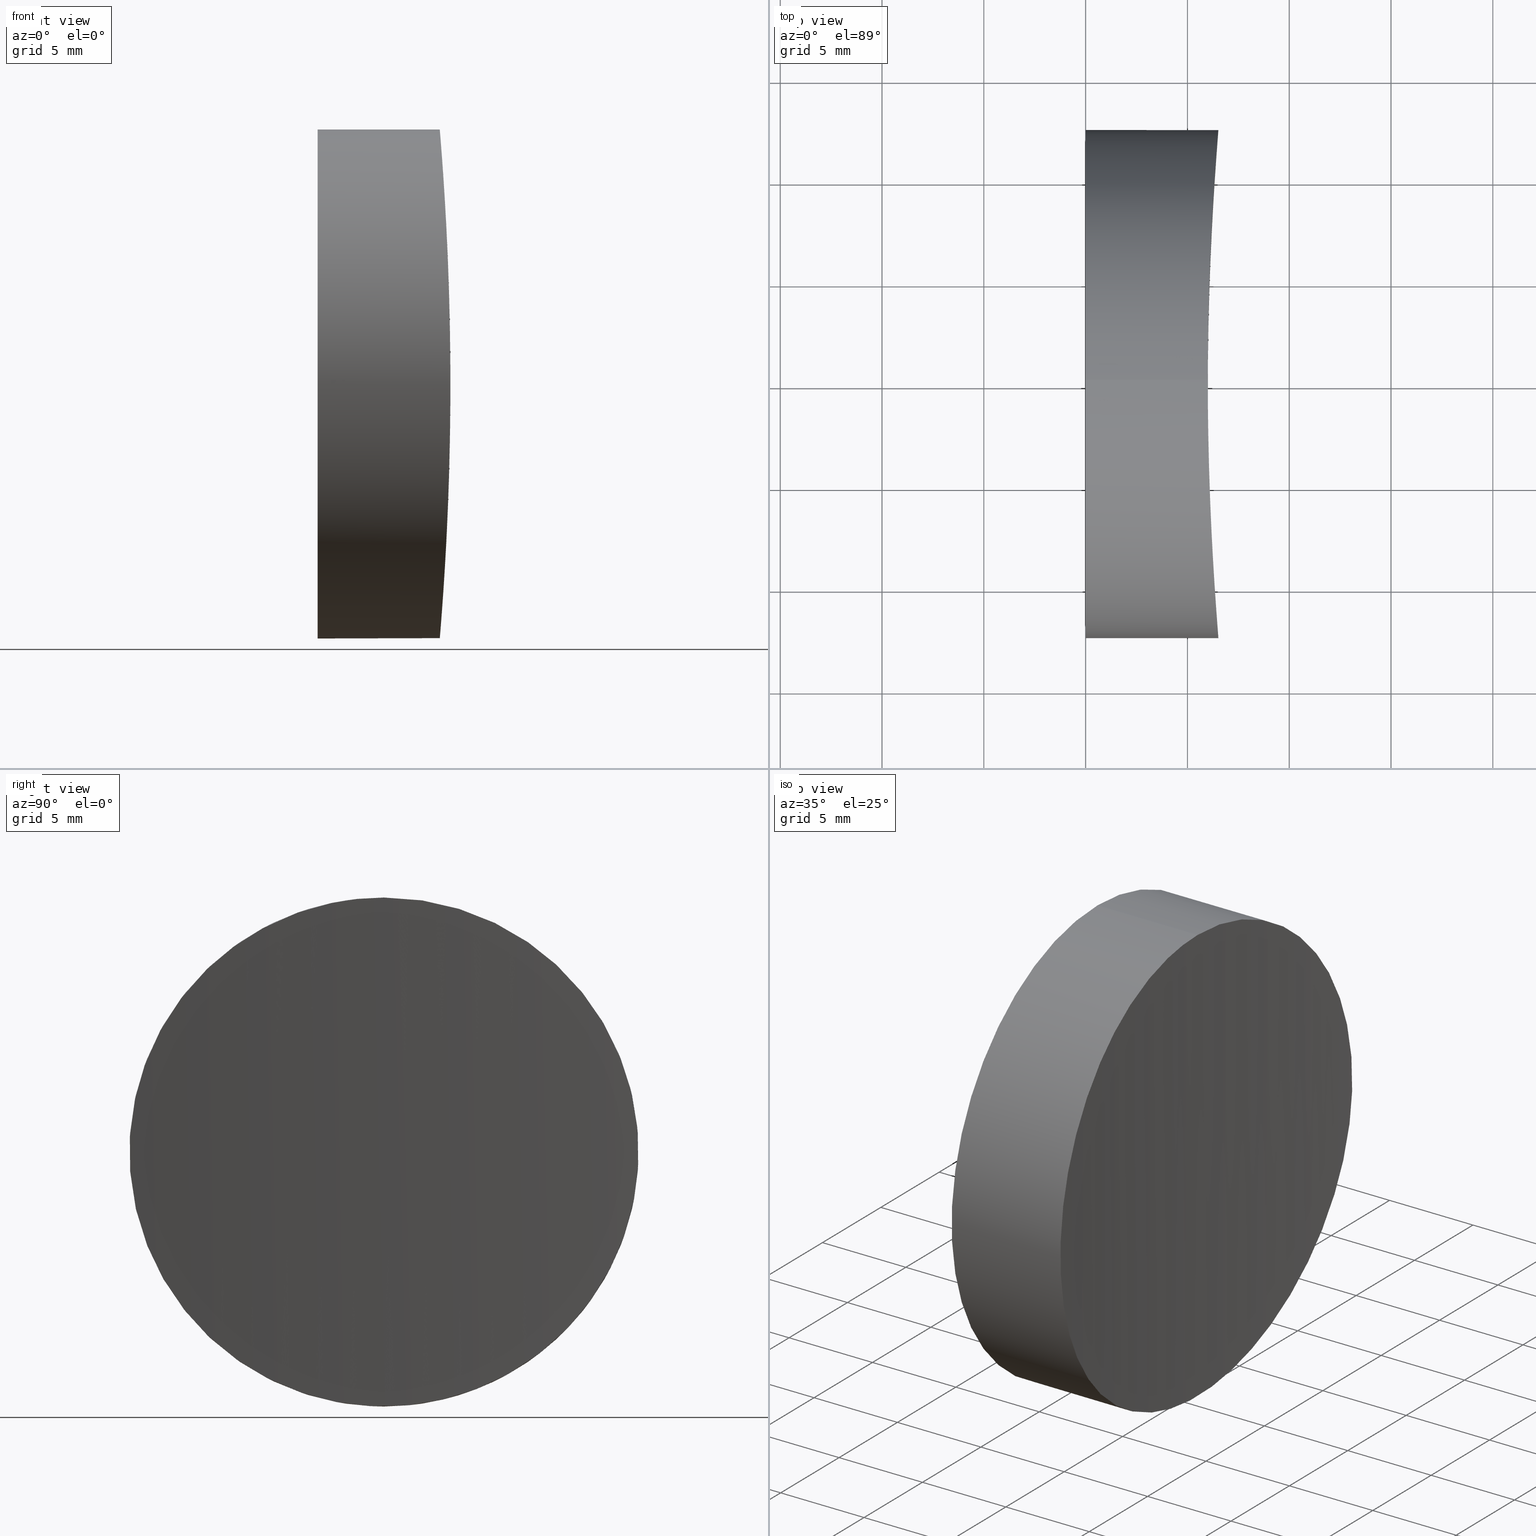
[diagram: canonical four-view strip — front | top / right | iso, engineering-drawing reading convention]
A machine part, canonical four-view strip (front | top / right | iso — engineering-drawing reading convention). The complete STEP part file that produces these views, byte-faithful:
ISO-10303-21;
HEADER;
FILE_DESCRIPTION (( 'STEP AP203' ),
    '1' );
FILE_NAME ('280010.STEP',
    '2022-07-05T09:59:46',
    ( '' ),
    ( '' ),
    'SwSTEP 2.0',
    'SolidWorks 2020',
    '' );
FILE_SCHEMA (( 'CONFIG_CONTROL_DESIGN' ));
ENDSEC;

DATA;
#1 = CARTESIAN_POINT ( 'NONE',  ( 6.376147396427840341, 10.61862390456445127, 6.607849892102100497 ) ) ;
#2 = CARTESIAN_POINT ( 'NONE',  ( 6.088505255453021903, 5.165961810733190163, -11.38994025824291967 ) ) ;
#3 = CARTESIAN_POINT ( 'NONE',  ( 6.457537356191566325, -11.70796952077147424, 4.397895220117566950 ) ) ;
#4 = CARTESIAN_POINT ( 'NONE',  ( 6.193199635109434276, -7.641263875007079598, 9.926502276424081117 ) ) ;
#5 = CARTESIAN_POINT ( 'NONE',  ( 6.328883672268599270, -9.931034005582013435, 7.602265254120419868 ) ) ;
#6 = AXIS2_PLACEMENT_3D ( 'NONE', #215, #55, #23 ) ;
#7 = CARTESIAN_POINT ( 'NONE',  ( 6.034837689992060383, -3.256232918732261616, 12.07534851124149178 ) ) ;
#8 = CARTESIAN_POINT ( 'NONE',  ( 6.026193496621473855, -2.831947871901593139, -12.18191163892857354 ) ) ;
#9 = COORDINATED_UNIVERSAL_TIME_OFFSET ( 8, 0, .AHEAD. ) ;
#10 = APPROVAL_PERSON_ORGANIZATION ( #187, #193, #59 ) ;
#11 =( NAMED_UNIT ( * ) SI_UNIT ( $, .STERADIAN. ) SOLID_ANGLE_UNIT ( ) );
#12 = PERSON_AND_ORGANIZATION ( #56, #206 ) ;
#13 = CARTESIAN_POINT ( 'NONE',  ( 6.514990996055246342, 12.42006658911362038, 1.633625901210800757 ) ) ;
#14 = EDGE_LOOP ( 'NONE', ( #85 ) ) ;
#15 = CARTESIAN_POINT ( 'NONE',  ( 5.999999999999977796, 0.8261937479083230063, 12.49999999999999822 ) ) ;
#16 = CC_DESIGN_PERSON_AND_ORGANIZATION_ASSIGNMENT ( #182, #114, ( #27 ) ) ;
#17 = CARTESIAN_POINT ( 'NONE',  ( 6.129222829679069839, 6.261990744167074574, 10.84917332548926439 ) ) ;
#18 = CARTESIAN_POINT ( 'NONE',  ( 6.243684906793502520, 8.551572899477204004, 9.126153280184320593 ) ) ;
#19 = CARTESIAN_POINT ( 'NONE',  ( 6.294201822752738984, -9.393752626218269342, -8.256921901753658588 ) ) ;
#20 = CARTESIAN_POINT ( 'NONE',  ( 6.226127752420155481, -8.253544607873250172, -9.423004812590422219 ) ) ;
#21 = CARTESIAN_POINT ( 'NONE',  ( 6.129548396243349906, -6.243240340865002125, -10.83693113258922835 ) ) ;
#22 = CARTESIAN_POINT ( 'NONE',  ( 6.345362052881838189, -10.17550146318673399, 7.271574394551668874 ) ) ;
#23 = DIRECTION ( 'NONE',  ( 0.000000000000000000, 0.000000000000000000, -1.000000000000000000 ) ) ;
#24 = CALENDAR_DATE ( 2022, 5, 7 ) ;
#25 = CARTESIAN_POINT ( 'NONE',  ( 0.000000000000000000, 0.000000000000000000, 0.000000000000000000 ) ) ;
#26 = PERSON_AND_ORGANIZATION_ROLE ( 'design_supplier' ) ;
#27 = SECURITY_CLASSIFICATION ( '', '', #57 ) ;
#28 = CARTESIAN_POINT ( 'NONE',  ( 6.467998644472943148, 11.84038924633390266, 4.027710909872904921 ) ) ;
#29 = DESIGN_CONTEXT ( 'detailed design', #156, 'design' ) ;
#30 = CARTESIAN_POINT ( 'NONE',  ( 6.446272440489730471, 11.56526249319863631, 4.794880385951563184 ) ) ;
#31 = EDGE_CURVE ( 'NONE', #106, #106, #118, .T. ) ;
#32 = CARTESIAN_POINT ( 'NONE',  ( 6.419916699231102086, 11.21767789387912018, -5.530108323972287465 ) ) ;
#33 = CARTESIAN_POINT ( 'NONE',  ( 6.130395715686826286, 6.263592566281014129, -10.82522876872452677 ) ) ;
#34 = CARTESIAN_POINT ( 'NONE',  ( 6.329185992805995475, 9.942482071473007110, -7.619716261117139844 ) ) ;
#35 = CARTESIAN_POINT ( 'NONE',  ( 6.130375080648248876, -6.263053743911343396, 10.82550719839762543 ) ) ;
#36 = CARTESIAN_POINT ( 'NONE',  ( 6.101234603332267525, -5.521815500588247438, -11.22170574840336776 ) ) ;
#37 = CARTESIAN_POINT ( 'NONE',  ( 5.999999999999976907, -3.252606517456513302E-16, 12.50000000000000000 ) ) ;
#38 = PLANE ( 'NONE',  #6 ) ;
#39 = CARTESIAN_POINT ( 'NONE',  ( 6.192308530735607164, -7.623937659853853965, -9.939913889633082533 ) ) ;
#40 = DATE_AND_TIME ( #24, #62 ) ;
#41 = APPROVAL_PERSON_ORGANIZATION ( #223, #143, #224 ) ;
#42 = PERSON_AND_ORGANIZATION_ROLE ( 'creator' ) ;
#43 = CARTESIAN_POINT ( 'NONE',  ( 6.008430815299216299, 1.642439647793319635, -12.39848649525788282 ) ) ;
#44 = APPLICATION_CONTEXT ( 'configuration controlled 3d designs of mechanical parts and assemblies' ) ;
#45 = COORDINATED_UNIVERSAL_TIME_OFFSET ( 8, 0, .AHEAD. ) ;
#46 = CARTESIAN_POINT ( 'NONE',  ( 6.495234258179480413, 12.17914254905655369, 2.843885315117525625 ) ) ;
#47 = LOCAL_TIME ( 17, 59, 46.00000000000000000, #204 ) ;
#48 = CARTESIAN_POINT ( 'NONE',  ( 6.419857375930523524, 11.21686828916546119, 5.531646984888014096 ) ) ;
#49 = APPROVAL ( #80, 'δָ��' ) ;
#50 = DIRECTION ( 'NONE',  ( -0.000000000000000000, -0.000000000000000000, 1.000000000000000000 ) ) ;
#51 = CARTESIAN_POINT ( 'NONE',  ( 6.391781805735194055, -10.84381918060227967, -6.271290910730456858 ) ) ;
#52 = EDGE_CURVE ( 'NONE', #163, #163, #111, .T. ) ;
#53 = CARTESIAN_POINT ( 'NONE',  ( 6.521672950370134281, -12.49918969755378306, -0.8375047441456749953 ) ) ;
#54 = DIRECTION ( 'NONE',  ( -1.000000000000000000, -0.000000000000000000, -0.000000000000000000 ) ) ;
#55 = DIRECTION ( 'NONE',  ( 1.000000000000000000, 0.000000000000000000, 0.000000000000000000 ) ) ;
#56 = PERSON ( 'δָ��', 'δָ��', 'δָ��', ('δָ��'), ('δָ��'), ('δָ��') ) ;
#57 = SECURITY_CLASSIFICATION_LEVEL ( 'unclassified' ) ;
#58 = PERSON_AND_ORGANIZATION_ROLE ( 'creator' ) ;
#59 = APPROVAL_ROLE ( '' ) ;
#60 = CC_DESIGN_APPROVAL ( #49, ( #27 ) ) ;
#61 = EDGE_LOOP ( 'NONE', ( #66 ) ) ;
#62 = LOCAL_TIME ( 17, 59, 46.00000000000000000, #97 ) ;
#63 = DATE_AND_TIME ( #210, #188 ) ;
#64 = CARTESIAN_POINT ( 'NONE',  ( 6.026299371812672057, 2.837035258669678761, 12.18060536483073086 ) ) ;
#65 = CC_DESIGN_PERSON_AND_ORGANIZATION_ASSIGNMENT ( #96, #201, ( #132 ) ) ;
#66 = ORIENTED_EDGE ( 'NONE', *, *, #31, .T. ) ;
#67 = ORIENTED_EDGE ( 'NONE', *, *, #52, .F. ) ;
#68 = LOCAL_TIME ( 17, 59, 46.00000000000000000, #128 ) ;
#69 = CARTESIAN_POINT ( 'NONE',  ( 6.033100206914962627, 3.251283740926249166, -12.09737590234672844 ) ) ;
#70 = CARTESIAN_POINT ( 'NONE',  ( 6.145676095344765777, -6.618020426992877070, 10.61227571686395343 ) ) ;
#71 = CARTESIAN_POINT ( 'NONE',  ( 6.421240545833891922, -11.23803611176415984, 5.534317935976573288 ) ) ;
#72 = CARTESIAN_POINT ( 'NONE',  ( 6.495559693845661897, -12.18312858501890972, 2.826172735115946466 ) ) ;
#73 = CARTESIAN_POINT ( 'NONE',  ( 6.467944653007775990, -11.83971249704335804, -4.029870235284732871 ) ) ;
#74 = CARTESIAN_POINT ( 'NONE',  ( 6.053288186687274752, -4.017103255715377408, -11.84400203633333071 ) ) ;
#75 = DATE_AND_TIME ( #93, #47 ) ;
#76 = CALENDAR_DATE ( 2022, 5, 7 ) ;
#77 = CC_DESIGN_DATE_AND_TIME_ASSIGNMENT ( #75, #131, ( #212 ) ) ;
#78 =( LENGTH_UNIT ( ) NAMED_UNIT ( * ) SI_UNIT ( .MILLI., .METRE. ) );
#79 = LOCAL_TIME ( 17, 59, 46.00000000000000000, #9 ) ;
#80 = APPROVAL_STATUS ( 'not_yet_approved' ) ;
#81 = CARTESIAN_POINT ( 'NONE',  ( 6.521703603254732862, 12.49955625306096962, 0.8223577882928105875 ) ) ;
#82 = CARTESIAN_POINT ( 'NONE',  ( 6.006820548008585448, 1.638509862964708574, 12.41889487352558064 ) ) ;
#83 = CC_DESIGN_PERSON_AND_ORGANIZATION_ASSIGNMENT ( #185, #26, ( #113 ) ) ;
#84 = AXIS2_PLACEMENT_3D ( 'NONE', #180, #54, #181 ) ;
#85 = ORIENTED_EDGE ( 'NONE', *, *, #31, .F. ) ;
#86 = CARTESIAN_POINT ( 'NONE',  ( 6.192560759641853707, 7.628230544584969408, -9.935936841406199704 ) ) ;
#87 = CARTESIAN_POINT ( 'NONE',  ( 6.294713622215927451, 9.415968773786326906, 8.261587198901231943 ) ) ;
#88 = CARTESIAN_POINT ( 'NONE',  ( 6.344470524970822645, -10.16239828828610214, -7.289892801502086073 ) ) ;
#89 = CARTESIAN_POINT ( 'NONE',  ( 6.277145709720385547, -9.118681638747734297, -8.559535603304018636 ) ) ;
#90 = CARTESIAN_POINT ( 'NONE',  ( 5.999975372344213298, -0.8113723884423986732, -12.50029553188867837 ) ) ;
#91 = CARTESIAN_POINT ( 'NONE',  ( 6.053856731563997506, -4.038202373547676416, 11.83680768109592663 ) ) ;
#92 = CARTESIAN_POINT ( 'NONE',  ( 6.074917707751362528, -4.784831458811678040, -11.56943027793650103 ) ) ;
#93 = CALENDAR_DATE ( 2022, 5, 7 ) ;
#94 = APPLICATION_PROTOCOL_DEFINITION ( 'international standard', 'config_control_design', 1994, #156 ) ;
#95 = DATE_AND_TIME ( #76, #79 ) ;
#96 = PERSON_AND_ORGANIZATION ( #56, #206 ) ;
#97 = COORDINATED_UNIVERSAL_TIME_OFFSET ( 8, 0, .AHEAD. ) ;
#98 = CC_DESIGN_SECURITY_CLASSIFICATION ( #27, ( #113 ) ) ;
#99 = ADVANCED_FACE ( 'NONE', ( #108, #140 ), #218, .T. ) ;
#100 = DIRECTION ( 'NONE',  ( 0.000000000000000000, 0.000000000000000000, -1.000000000000000000 ) ) ;
#101 = EDGE_LOOP ( 'NONE', ( #154 ) ) ;
#102 = CARTESIAN_POINT ( 'NONE',  ( 6.391407612702060703, 10.83082182879602406, -6.253934275203685722 ) ) ;
#103 = CARTESIAN_POINT ( 'NONE',  ( 6.101926063435013425, 5.540605587937982968, -11.21248676478604445 ) ) ;
#104 = CARTESIAN_POINT ( 'NONE',  ( 6.100581901272938978, 5.544166617083713611, 11.23313910583204489 ) ) ;
#105 = APPROVAL_PERSON_ORGANIZATION ( #12, #49, #150 ) ;
#106 = VERTEX_POINT ( 'NONE', #183 ) ;
#107 = CARTESIAN_POINT ( 'NONE',  ( 6.026646997334813349, -2.856011499367050011, 12.17633376731241768 ) ) ;
#108 = FACE_OUTER_BOUND ( 'NONE', #101, .T. ) ;
#109 = CARTESIAN_POINT ( 'NONE',  ( 6.521807479203316937, -12.50079842918784756, 0.8131395481194493291 ) ) ;
#110 = PERSON_AND_ORGANIZATION ( #56, #206 ) ;
#111 = B_SPLINE_CURVE_WITH_KNOTS ( 'NONE', 3,
 ( #174, #15, #82, #64, #171, #138, #211, #104, #17, #225, #209, #152, #18, #87, #135, #1, #121, #48, #30, #28, #194, #46, #13, #81, #208, #116, #151, #190, #117, #191, #120, #32, #102, #192, #34, #173, #155, #86, #213, #33, #103, #2, #207, #69, #139, #43, #189, #170, #90, #162, #8, #199, #74, #92, #36, #21, #176, #39, #20, #89, #19, #179, #88, #51, #158, #219, #73, #123, #161, #145, #53, #109, #198, #72, #217, #159, #3, #71, #160, #22, #5, #196, #195, #178, #4, #70, #35, #142, #124, #91, #7, #107, #144, #197, #37 ),
 .UNSPECIFIED., .T., .F.,
 ( 4, 2, 2, 2, 2, 2, 2, 2, 2, 1, 2, 2, 2, 2, 2, 2, 2, 2, 2, 2, 2, 2, 2, 2, 2, 2, 2, 1, 2, 2, 2, 2, 2, 2, 2, 2, 2, 2, 2, 2, 2, 2, 2, 2, 2, 1, 2, 2, 4 ),
 ( 0.000000000000000000, 0.002443319371097656730, 0.003664979056646483577, 0.004886638742195310858, 0.007329958113292969757, 0.008551617798841799206, 0.009773277484390628655, 0.01221659685548828755, 0.01343825654103711874, 0.01465991622658594819, 0.01588157591213477937, 0.01710323559768360882, 0.01954655496878127119, 0.02076821465433009717, 0.02198987433987892662, 0.02443319371097658552, 0.02565485339652541150, 0.02687651308207424095, 0.02931983245317189291, 0.03176315182426954487, 0.03298481150981836391, 0.03420647119536719682, 0.03664979056646484185, 0.03787145025201366089, 0.03909310993756248687, 0.04153642930866013189, 0.04275808899420895787, 0.04397974867975779079, 0.04520140836530661677, 0.04642306805085544275, 0.04886638742195308777, 0.05008804710750192762, 0.05130970679305075360, 0.05375302616414841250, 0.05497468584969723848, 0.05619634553524606446, 0.05863966490634372336, 0.06108298427744137532, 0.06230464396299020130, 0.06352630364853903422, 0.06596962301963670006, 0.06719128270518552604, 0.06841294239073435202, 0.07085626176183201785, 0.07207792144738084383, 0.07329958113292966981, 0.07452124081847849579, 0.07574290050402732177, 0.07818621987512497373 ),
 .UNSPECIFIED. ) ;
#112 = PERSON_AND_ORGANIZATION ( #56, #206 ) ;
#113 = PRODUCT_DEFINITION_FORMATION_WITH_SPECIFIED_SOURCE ( '�κ�', '', #132, .NOT_KNOWN. ) ;
#114 = PERSON_AND_ORGANIZATION_ROLE ( 'classification_officer' ) ;
#115 = SHAPE_DEFINITION_REPRESENTATION ( #153, #137 ) ;
#116 = CARTESIAN_POINT ( 'NONE',  ( 6.520108886048449293, 12.48053605275269540, -0.8098988177101875685 ) ) ;
#117 = CARTESIAN_POINT ( 'NONE',  ( 6.488764403187537333, 12.10024958246024518, -3.240700407733879018 ) ) ;
#118 = CIRCLE ( 'NONE', #164, 12.50000000000000000 ) ;
#119 = UNCERTAINTY_MEASURE_WITH_UNIT (LENGTH_MEASURE( 1.000000000000000082E-05 ), #78, 'distance_accuracy_value', 'NONE');
#120 = CARTESIAN_POINT ( 'NONE',  ( 6.433341874440594133, 11.39471007485945186, -5.155414788181768238 ) ) ;
#121 = CARTESIAN_POINT ( 'NONE',  ( 6.391443571840551563, 10.83130692509940296, 6.253002736514265969 ) ) ;
#122 = DIRECTION ( 'NONE',  ( 1.000000000000000000, 0.000000000000000000, 0.000000000000000000 ) ) ;
#123 = CARTESIAN_POINT ( 'NONE',  ( 6.487058303711219054, -12.07868509527181367, -3.244073441699015348 ) ) ;
#124 = CARTESIAN_POINT ( 'NONE',  ( 6.075563775584579496, -4.804942149287909636, 11.56108707070596786 ) ) ;
#125 = FACE_OUTER_BOUND ( 'NONE', #14, .T. ) ;
#126 = PRODUCT_RELATED_PRODUCT_CATEGORY ( 'detail', '', ( #132 ) ) ;
#127 = CYLINDRICAL_SURFACE ( 'NONE', #168, 150.0000000000000568 ) ;
#128 = COORDINATED_UNIVERSAL_TIME_OFFSET ( 8, 0, .AHEAD. ) ;
#129 = DATE_AND_TIME ( #146, #68 ) ;
#130 = APPROVAL_DATE_TIME ( #95, #143 ) ;
#131 = DATE_TIME_ROLE ( 'creation_date' ) ;
#132 = PRODUCT ( '280010', '280010', '', ( #205 ) ) ;
#133 = DIRECTION ( 'NONE',  ( 1.000000000000000000, 0.000000000000000000, 0.000000000000000000 ) ) ;
#134 = APPROVAL_DATE_TIME ( #63, #49 ) ;
#135 = CARTESIAN_POINT ( 'NONE',  ( 6.328560150369839654, 9.933270336944849177, 7.632532718943107142 ) ) ;
#136 = EDGE_LOOP ( 'NONE', ( #67 ) ) ;
#137 = ADVANCED_BREP_SHAPE_REPRESENTATION ( '280010', ( #169, #149 ), #216 ) ;
#138 = CARTESIAN_POINT ( 'NONE',  ( 6.053327266751978186, 4.018664879928458333, 11.84351064003636012 ) ) ;
#139 = CARTESIAN_POINT ( 'NONE',  ( 6.013469711022273678, 2.049683329658251285, -12.33757008773582697 ) ) ;
#140 = FACE_OUTER_BOUND ( 'NONE', #61, .T. ) ;
#141 = FACE_OUTER_BOUND ( 'NONE', #136, .T. ) ;
#142 = CARTESIAN_POINT ( 'NONE',  ( 6.101965728747694939, -5.541627674318326591, 11.21194947459673052 ) ) ;
#143 = APPROVAL ( #221, 'δָ��' ) ;
#144 = CARTESIAN_POINT ( 'NONE',  ( 6.006824348371138989, -1.643443983149308396, 12.41888540346065106 ) ) ;
#145 = CARTESIAN_POINT ( 'NONE',  ( 6.514775591225814289, -12.41746035603222431, -1.649392130084453845 ) ) ;
#146 = CALENDAR_DATE ( 2022, 5, 7 ) ;
#147 = CARTESIAN_POINT ( 'NONE',  ( 5.999999999999977796, 0.000000000000000000, 12.50000000000000000 ) ) ;
#148 = APPLICATION_PROTOCOL_DEFINITION ( 'international standard', 'config_control_design', 1994, #44 ) ;
#149 = AXIS2_PLACEMENT_3D ( 'NONE', #25, #186, #166 ) ;
#150 = APPROVAL_ROLE ( '' ) ;
#151 = CARTESIAN_POINT ( 'NONE',  ( 6.513417055853025772, 12.40012690602548240, -1.629898454950805320 ) ) ;
#152 = CARTESIAN_POINT ( 'NONE',  ( 6.226630215835252891, 8.248594128180890550, 9.401077708544404388 ) ) ;
#153 = PRODUCT_DEFINITION_SHAPE ( 'NONE', 'NONE',  #212 ) ;
#154 = ORIENTED_EDGE ( 'NONE', *, *, #52, .T. ) ;
#155 = CARTESIAN_POINT ( 'NONE',  ( 6.226441295271778920, 8.259686498453037373, -9.418516187144048146 ) ) ;
#156 = APPLICATION_CONTEXT ( 'configuration controlled 3d designs of mechanical parts and assemblies' ) ;
#157 = CC_DESIGN_APPROVAL ( #193, ( #113 ) ) ;
#158 = CARTESIAN_POINT ( 'NONE',  ( 6.420507104780448060, -11.22829687443072544, -5.553889383264529300 ) ) ;
#159 = CARTESIAN_POINT ( 'NONE',  ( 6.468548475995947733, -11.84732706288736814, 4.007369114285180167 ) ) ;
#160 = CARTESIAN_POINT ( 'NONE',  ( 6.392568248313731161, -10.85459907623715736, 6.252533542925680976 ) ) ;
#161 = CARTESIAN_POINT ( 'NONE',  ( 6.495148348041761110, -12.17808449982038432, -2.847843383744753876 ) ) ;
#162 = CARTESIAN_POINT ( 'NONE',  ( 6.006607867475346474, -1.622522735321221932, -12.42147413492825159 ) ) ;
#163 = VERTEX_POINT ( 'NONE', #147 ) ;
#164 = AXIS2_PLACEMENT_3D ( 'NONE', #226, #133, #100 ) ;
#165 =( NAMED_UNIT ( * ) PLANE_ANGLE_UNIT ( ) SI_UNIT ( $, .RADIAN. ) );
#166 = DIRECTION ( 'NONE',  ( 1.000000000000000000, 0.000000000000000000, 0.000000000000000000 ) ) ;
#167 = DATE_TIME_ROLE ( 'classification_date' ) ;
#168 = AXIS2_PLACEMENT_3D ( 'NONE', #214, #50, #122 ) ;
#169 = MANIFOLD_SOLID_BREP ( '�г�-����1', #184 ) ;
#170 = CARTESIAN_POINT ( 'NONE',  ( 6.000012416897665624, 0.4124965838233780047, -12.49985099721812176 ) ) ;
#171 = CARTESIAN_POINT ( 'NONE',  ( 6.034334643477610172, 3.233194297362334879, 12.08159204464911163 ) ) ;
#172 = CC_DESIGN_PERSON_AND_ORGANIZATION_ASSIGNMENT ( #110, #58, ( #212 ) ) ;
#173 = CARTESIAN_POINT ( 'NONE',  ( 6.295323349852089301, 9.426085996109762277, -8.251046661737245103 ) ) ;
#174 = CARTESIAN_POINT ( 'NONE',  ( 5.999999999999976907, -3.252606517456513302E-16, 12.50000000000000000 ) ) ;
#175 = CC_DESIGN_PERSON_AND_ORGANIZATION_ASSIGNMENT ( #112, #42, ( #113 ) ) ;
#176 = CARTESIAN_POINT ( 'NONE',  ( 6.144788964857944791, -6.597949515641471585, -10.62478896650240401 ) ) ;
#177 = CC_DESIGN_APPROVAL ( #143, ( #212 ) ) ;
#178 = CARTESIAN_POINT ( 'NONE',  ( 6.227025492806969709, -8.269770598911675208, 9.408805829206347227 ) ) ;
#179 = CARTESIAN_POINT ( 'NONE',  ( 6.327918646317199247, -9.916484233125677505, -7.621199915263448865 ) ) ;
#180 = CARTESIAN_POINT ( 'NONE',  ( 10.00000000000000000, 0.000000000000000000, 0.000000000000000000 ) ) ;
#181 = DIRECTION ( 'NONE',  ( 0.000000000000000000, 0.000000000000000000, 1.000000000000000000 ) ) ;
#182 = PERSON_AND_ORGANIZATION ( #56, #206 ) ;
#183 = CARTESIAN_POINT ( 'NONE',  ( 0.000000000000000000, 0.000000000000000000, -12.50000000000000000 ) ) ;
#184 = CLOSED_SHELL ( 'NONE', ( #99, #220, #222 ) ) ;
#185 = PERSON_AND_ORGANIZATION ( #56, #206 ) ;
#186 = DIRECTION ( 'NONE',  ( 0.000000000000000000, 0.000000000000000000, 1.000000000000000000 ) ) ;
#187 = PERSON_AND_ORGANIZATION ( #56, #206 ) ;
#188 = LOCAL_TIME ( 17, 59, 46.00000000000000000, #45 ) ;
#189 = CARTESIAN_POINT ( 'NONE',  ( 6.001688934165361644, 0.8216519230392295148, -12.47978218908894377 ) ) ;
#190 = CARTESIAN_POINT ( 'NONE',  ( 6.508383688286067503, 12.33949168005553609, -2.038133913772393946 ) ) ;
#191 = CARTESIAN_POINT ( 'NONE',  ( 6.469606469403587745, 11.86423081102261534, -4.020062757720136659 ) ) ;
#192 = CARTESIAN_POINT ( 'NONE',  ( 6.376309252046412190, 10.62085428721040437, -6.604029877295992890 ) ) ;
#193 = APPROVAL ( #200, 'δָ��' ) ;
#194 = CARTESIAN_POINT ( 'NONE',  ( 6.487031638987025950, 12.07835000208139853, 3.245109228582170768 ) ) ;
#195 = CARTESIAN_POINT ( 'NONE',  ( 6.278071238238563723, -9.133854470089048050, 8.543353307795310769 ) ) ;
#196 = CARTESIAN_POINT ( 'NONE',  ( 6.295139290789150799, -9.408675743435377825, 8.239945034338745700 ) ) ;
#197 = CARTESIAN_POINT ( 'NONE',  ( 5.999999999999976019, -0.8261937479083205638, 12.50000000000000000 ) ) ;
#198 = CARTESIAN_POINT ( 'NONE',  ( 6.515015086421109380, -12.42032442770144485, 1.627586833908821973 ) ) ;
#199 = CARTESIAN_POINT ( 'NONE',  ( 6.034349282345447207, -3.233745045944866892, -12.08140702822209178 ) ) ;
#200 = APPROVAL_STATUS ( 'not_yet_approved' ) ;
#201 = PERSON_AND_ORGANIZATION_ROLE ( 'design_owner' ) ;
#202 = APPROVAL_DATE_TIME ( #129, #193 ) ;
#203 = CC_DESIGN_DATE_AND_TIME_ASSIGNMENT ( #40, #167, ( #27 ) ) ;
#204 = COORDINATED_UNIVERSAL_TIME_OFFSET ( 8, 0, .AHEAD. ) ;
#205 = MECHANICAL_CONTEXT ( 'NONE', #44, 'mechanical' ) ;
#206 = ORGANIZATION ( 'δָ��', 'δָ��', '' ) ;
#207 = CARTESIAN_POINT ( 'NONE',  ( 6.052244574453670367, 4.030423642459311395, -11.86074564803962872 ) ) ;
#208 = CARTESIAN_POINT ( 'NONE',  ( 6.521759035057837828, 12.50021912111398592, -0.4010194982624020188 ) ) ;
#209 = CARTESIAN_POINT ( 'NONE',  ( 6.192926478458684159, 7.611985582430417452, 9.923570056508005166 ) ) ;
#210 = CALENDAR_DATE ( 2022, 5, 7 ) ;
#211 = CARTESIAN_POINT ( 'NONE',  ( 6.064332655373520176, 4.408967041752097415, 11.70379464263549529 ) ) ;
#212 = PRODUCT_DEFINITION ( 'δ֪', '', #113, #29 ) ;
#213 = CARTESIAN_POINT ( 'NONE',  ( 6.145476357911609178, 6.613352572750697433, -10.61504843549617583 ) ) ;
#214 = CARTESIAN_POINT ( 'NONE',  ( 156.0000000000000000, 0.000000000000000000, -12.50000000000000000 ) ) ;
#215 = CARTESIAN_POINT ( 'NONE',  ( 0.000000000000000000, 0.000000000000000000, 0.000000000000000000 ) ) ;
#216 =( GEOMETRIC_REPRESENTATION_CONTEXT ( 3 ) GLOBAL_UNCERTAINTY_ASSIGNED_CONTEXT ( ( #119 ) ) GLOBAL_UNIT_ASSIGNED_CONTEXT ( ( #78, #165, #11 ) ) REPRESENTATION_CONTEXT ( 'NONE', 'WORKASPACE' ) );
#217 = CARTESIAN_POINT ( 'NONE',  ( 6.487529307774815734, -12.08450499263839539, 3.222251516571578822 ) ) ;
#218 = CYLINDRICAL_SURFACE ( 'NONE', #84, 12.50000000000000000 ) ;
#219 = CARTESIAN_POINT ( 'NONE',  ( 6.456888217474631375, -11.69968182353589903, -4.419844988627548155 ) ) ;
#220 = ADVANCED_FACE ( 'NONE', ( #125 ), #38, .F. ) ;
#221 = APPROVAL_STATUS ( 'not_yet_approved' ) ;
#222 = ADVANCED_FACE ( 'NONE', ( #141 ), #127, .F. ) ;
#223 = PERSON_AND_ORGANIZATION ( #56, #206 ) ;
#224 = APPROVAL_ROLE ( '' ) ;
#225 = CARTESIAN_POINT ( 'NONE',  ( 6.176422164572798579, 7.280873506709468757, 10.16885703808110542 ) ) ;
#226 = CARTESIAN_POINT ( 'NONE',  ( 0.000000000000000000, 0.000000000000000000, 0.000000000000000000 ) ) ;
ENDSEC;
END-ISO-10303-21;
